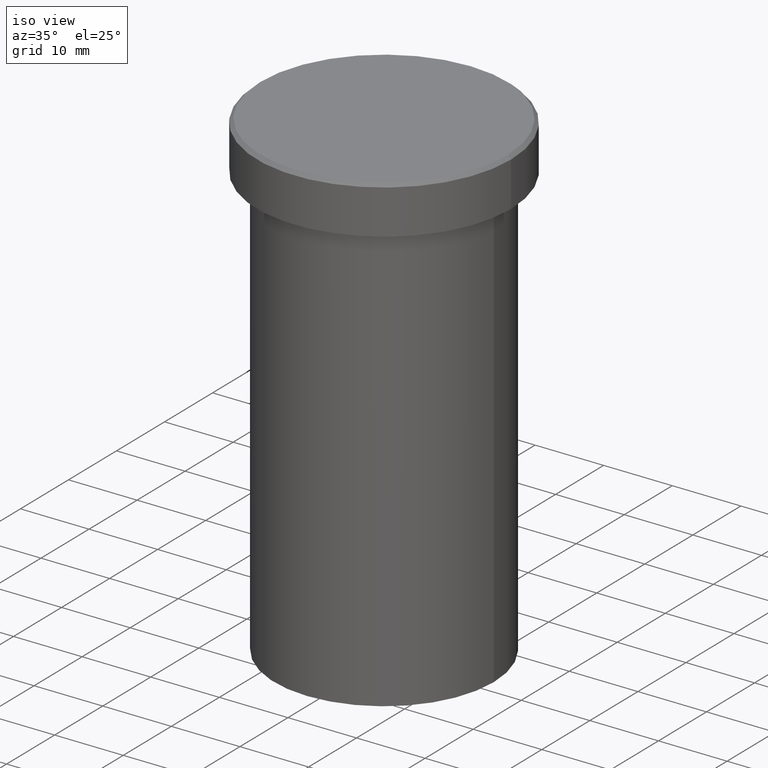
[diagram: clean part render]
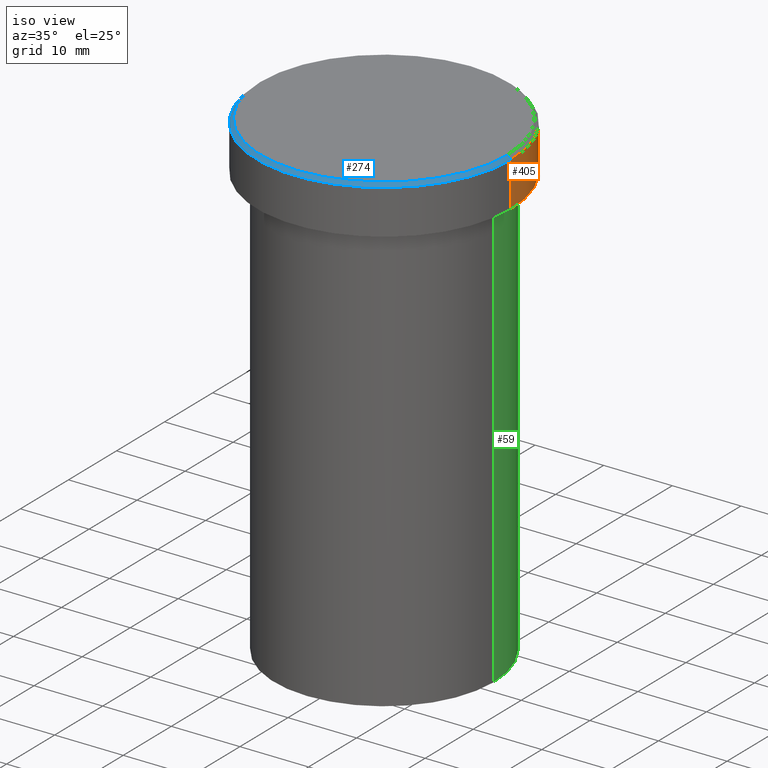
[diagram: same view with three faces highlighted in distinct colors, each labeled with its STEP entity id]
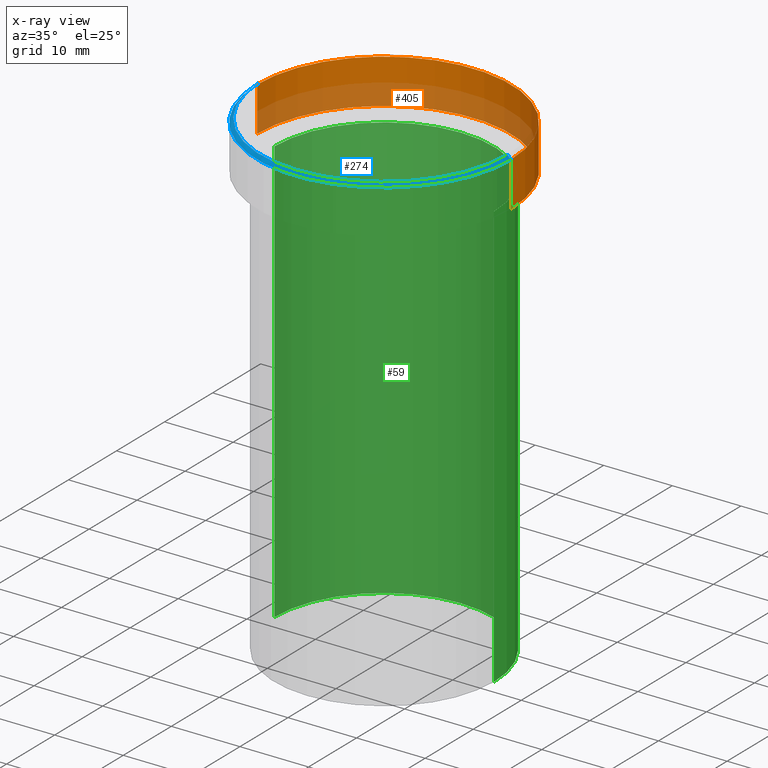
[diagram: x-ray of the same camera — body ghosted, the three highlighted faces saturated]
A machine part, iso view with three faces highlighted in distinct colors.
The next image is the same camera in x-ray (body ghosted, the three faces saturated) — at least one of them is partly hidden behind the body in this view.
Their STEP definitions:

[orange] entity #405 — the highlighted cylindrical surface (partial cylindrical patch) has radius 18.5 mm, axis along (-0, -0, 1).
#34 = CYLINDRICAL_SURFACE ( 'NONE', #152, 18.50000000000000000 ) ;
#46 = EDGE_CURVE ( 'NONE', #216, #121, #319, .T. ) ;
#62 = ORIENTED_EDGE ( 'NONE', *, *, #169, .T. ) ;
#63 = ORIENTED_EDGE ( 'NONE', *, *, #248, .T. ) ;
#67 = DIRECTION ( 'NONE',  ( -0.000000000000000000, -0.000000000000000000, 1.000000000000000000 ) ) ;
#83 = VECTOR ( 'NONE', #404, 1000.000000000000000 ) ;
#89 = DIRECTION ( 'NONE',  ( 1.000000000000000000, 0.000000000000000000, 0.000000000000000000 ) ) ;
#102 = VERTEX_POINT ( 'NONE', #358 ) ;
#121 = VERTEX_POINT ( 'NONE', #390 ) ;
#152 = AXIS2_PLACEMENT_3D ( 'NONE', #382, #67, #187 ) ;
#169 = EDGE_CURVE ( 'NONE', #348, #121, #296, .T. ) ;
#170 = CARTESIAN_POINT ( 'NONE',  ( 18.50000000000000000, 0.000000000000000000, -6.999999999999999112 ) ) ;
#177 = ORIENTED_EDGE ( 'NONE', *, *, #46, .F. ) ;
#181 = FACE_OUTER_BOUND ( 'NONE', #392, .T. ) ;
#186 = CARTESIAN_POINT ( 'NONE',  ( 18.50000000000000000, 0.000000000000000000, 0.000000000000000000 ) ) ;
#187 = DIRECTION ( 'NONE',  ( 1.000000000000000000, 0.000000000000000000, 0.000000000000000000 ) ) ;
#213 = DIRECTION ( 'NONE',  ( -0.000000000000000000, -0.000000000000000000, 1.000000000000000000 ) ) ;
#216 = VERTEX_POINT ( 'NONE', #170 ) ;
#235 = VECTOR ( 'NONE', #361, 1000.000000000000000 ) ;
#241 = CARTESIAN_POINT ( 'NONE',  ( -18.50000000000000000, 2.265596578422603396E-15, 0.000000000000000000 ) ) ;
#245 = ORIENTED_EDGE ( 'NONE', *, *, #366, .T. ) ;
#248 = EDGE_CURVE ( 'NONE', #102, #348, #277, .T. ) ;
#273 = DIRECTION ( 'NONE',  ( 0.000000000000000000, 0.000000000000000000, -1.000000000000000000 ) ) ;
#277 = LINE ( 'NONE', #241, #83 ) ;
#282 = CIRCLE ( 'NONE', #375, 18.50000000000000000 ) ;
#290 = CARTESIAN_POINT ( 'NONE',  ( 0.000000000000000000, 0.000000000000000000, -6.999999999999999112 ) ) ;
#296 = CIRCLE ( 'NONE', #359, 18.50000000000000000 ) ;
#318 = CARTESIAN_POINT ( 'NONE',  ( -18.50000000000000000, 2.265596578422603396E-15, -0.5000000000000073275 ) ) ;
#319 = LINE ( 'NONE', #186, #235 ) ;
#345 = DIRECTION ( 'NONE',  ( 1.000000000000000000, 0.000000000000000000, 0.000000000000000000 ) ) ;
#348 = VERTEX_POINT ( 'NONE', #318 ) ;
#358 = CARTESIAN_POINT ( 'NONE',  ( -18.50000000000000000, 2.265596578422603396E-15, -6.999999999999999112 ) ) ;
#359 = AXIS2_PLACEMENT_3D ( 'NONE', #398, #273, #89 ) ;
#361 = DIRECTION ( 'NONE',  ( -0.000000000000000000, -0.000000000000000000, 1.000000000000000000 ) ) ;
#366 = EDGE_CURVE ( 'NONE', #216, #102, #282, .T. ) ;
#375 = AXIS2_PLACEMENT_3D ( 'NONE', #290, #213, #345 ) ;
#382 = CARTESIAN_POINT ( 'NONE',  ( 0.000000000000000000, 0.000000000000000000, 0.000000000000000000 ) ) ;
#390 = CARTESIAN_POINT ( 'NONE',  ( 18.50000000000000000, 0.000000000000000000, -0.5000000000000073275 ) ) ;
#392 = EDGE_LOOP ( 'NONE', ( #245, #63, #62, #177 ) ) ;
#398 = CARTESIAN_POINT ( 'NONE',  ( 0.000000000000000000, 0.000000000000000000, -0.5000000000000073275 ) ) ;
#404 = DIRECTION ( 'NONE',  ( -0.000000000000000000, -0.000000000000000000, 1.000000000000000000 ) ) ;
#405 = ADVANCED_FACE ( 'NONE', ( #181 ), #34, .T. ) ;

[blue] entity #274 — the highlighted conical surface has half-angle 45 deg.
#17 = DIRECTION ( 'NONE',  ( -0.7071067811865352493, 0.000000000000000000, -0.7071067811865597852 ) ) ;
#21 = CARTESIAN_POINT ( 'NONE',  ( -18.00000000000001066, 0.000000000000000000, 0.000000000000000000 ) ) ;
#23 = VECTOR ( 'NONE', #115, 1000.000000000000000 ) ;
#26 = LINE ( 'NONE', #146, #23 ) ;
#32 = EDGE_LOOP ( 'NONE', ( #300, #385, #249, #287 ) ) ;
#98 = LINE ( 'NONE', #295, #347 ) ;
#111 = EDGE_CURVE ( 'NONE', #153, #348, #98, .T. ) ;
#115 = DIRECTION ( 'NONE',  ( 0.7071067811865352493, 8.659560562354782482E-17, -0.7071067811865597852 ) ) ;
#118 = FACE_OUTER_BOUND ( 'NONE', #32, .T. ) ;
#121 = VERTEX_POINT ( 'NONE', #390 ) ;
#139 = CARTESIAN_POINT ( 'NONE',  ( 18.00000000000001066, 2.234980408443920004E-15, 0.000000000000000000 ) ) ;
#146 = CARTESIAN_POINT ( 'NONE',  ( 18.00000000000001066, 2.204364238465237006E-15, 0.000000000000000000 ) ) ;
#150 = DIRECTION ( 'NONE',  ( 0.000000000000000000, 0.000000000000000000, -1.000000000000000000 ) ) ;
#153 = VERTEX_POINT ( 'NONE', #21 ) ;
#165 = CIRCLE ( 'NONE', #320, 18.50000000000000000 ) ;
#171 = AXIS2_PLACEMENT_3D ( 'NONE', #279, #408, #309 ) ;
#211 = EDGE_CURVE ( 'NONE', #121, #348, #165, .T. ) ;
#221 = EDGE_CURVE ( 'NONE', #285, #121, #26, .T. ) ;
#244 = CARTESIAN_POINT ( 'NONE',  ( 0.000000000000000000, 0.000000000000000000, 0.000000000000000000 ) ) ;
#249 = ORIENTED_EDGE ( 'NONE', *, *, #111, .T. ) ;
#267 = EDGE_CURVE ( 'NONE', #153, #285, #386, .T. ) ;
#274 = ADVANCED_FACE ( 'NONE', ( #118 ), #349, .T. ) ;
#279 = CARTESIAN_POINT ( 'NONE',  ( 0.000000000000000000, 0.000000000000000000, 0.000000000000000000 ) ) ;
#285 = VERTEX_POINT ( 'NONE', #139 ) ;
#287 = ORIENTED_EDGE ( 'NONE', *, *, #211, .F. ) ;
#295 = CARTESIAN_POINT ( 'NONE',  ( -18.00000000000001066, 0.000000000000000000, 0.000000000000000000 ) ) ;
#300 = ORIENTED_EDGE ( 'NONE', *, *, #221, .F. ) ;
#305 = DIRECTION ( 'NONE',  ( 0.000000000000000000, 0.000000000000000000, -1.000000000000000000 ) ) ;
#307 = CARTESIAN_POINT ( 'NONE',  ( 0.000000000000000000, 0.000000000000000000, -0.5000000000000073275 ) ) ;
#309 = DIRECTION ( 'NONE',  ( 1.000000000000000000, 0.000000000000000000, 0.000000000000000000 ) ) ;
#318 = CARTESIAN_POINT ( 'NONE',  ( -18.50000000000000000, 2.265596578422603396E-15, -0.5000000000000073275 ) ) ;
#320 = AXIS2_PLACEMENT_3D ( 'NONE', #307, #150, #373 ) ;
#347 = VECTOR ( 'NONE', #17, 1000.000000000000000 ) ;
#348 = VERTEX_POINT ( 'NONE', #318 ) ;
#349 = CONICAL_SURFACE ( 'NONE', #402, 18.00000000000001066, 0.7853981633974309595 ) ;
#373 = DIRECTION ( 'NONE',  ( 1.000000000000000000, 0.000000000000000000, 0.000000000000000000 ) ) ;
#379 = DIRECTION ( 'NONE',  ( -1.000000000000000000, 0.000000000000000000, 0.000000000000000000 ) ) ;
#385 = ORIENTED_EDGE ( 'NONE', *, *, #267, .F. ) ;
#386 = CIRCLE ( 'NONE', #171, 18.00000000000001066 ) ;
#390 = CARTESIAN_POINT ( 'NONE',  ( 18.50000000000000000, 0.000000000000000000, -0.5000000000000073275 ) ) ;
#402 = AXIS2_PLACEMENT_3D ( 'NONE', #244, #305, #379 ) ;
#408 = DIRECTION ( 'NONE',  ( -0.000000000000000000, -0.000000000000000000, 1.000000000000000000 ) ) ;

[green] entity #59 — the highlighted cylindrical surface (partial cylindrical patch) has radius 16 mm, axis along (-0, -0, 1).
#11 = VERTEX_POINT ( 'NONE', #324 ) ;
#13 = DIRECTION ( 'NONE',  ( 1.000000000000000000, 0.000000000000000000, 0.000000000000000000 ) ) ;
#15 = LINE ( 'NONE', #136, #254 ) ;
#38 = DIRECTION ( 'NONE',  ( -0.000000000000000000, -0.000000000000000000, 1.000000000000000000 ) ) ;
#51 = VECTOR ( 'NONE', #210, 1000.000000000000000 ) ;
#59 = ADVANCED_FACE ( 'NONE', ( #227 ), #160, .T. ) ;
#81 = LINE ( 'NONE', #374, #51 ) ;
#88 = VERTEX_POINT ( 'NONE', #266 ) ;
#93 = CIRCLE ( 'NONE', #328, 16.00000000000000000 ) ;
#106 = EDGE_LOOP ( 'NONE', ( #383, #184, #326, #315 ) ) ;
#116 = VERTEX_POINT ( 'NONE', #258 ) ;
#126 = CIRCLE ( 'NONE', #231, 16.00000000000000000 ) ;
#136 = CARTESIAN_POINT ( 'NONE',  ( -16.00000000000000000, 1.959434878635765131E-15, 0.000000000000000000 ) ) ;
#140 = EDGE_CURVE ( 'NONE', #11, #88, #15, .T. ) ;
#160 = CYLINDRICAL_SURFACE ( 'NONE', #164, 16.00000000000000000 ) ;
#164 = AXIS2_PLACEMENT_3D ( 'NONE', #196, #38, #329 ) ;
#168 = DIRECTION ( 'NONE',  ( -0.000000000000000000, -0.000000000000000000, 1.000000000000000000 ) ) ;
#184 = ORIENTED_EDGE ( 'NONE', *, *, #140, .T. ) ;
#196 = CARTESIAN_POINT ( 'NONE',  ( 0.000000000000000000, 0.000000000000000000, 0.000000000000000000 ) ) ;
#199 = EDGE_CURVE ( 'NONE', #229, #116, #81, .T. ) ;
#210 = DIRECTION ( 'NONE',  ( -0.000000000000000000, -0.000000000000000000, 1.000000000000000000 ) ) ;
#217 = DIRECTION ( 'NONE',  ( -0.000000000000000000, -0.000000000000000000, 1.000000000000000000 ) ) ;
#227 = FACE_OUTER_BOUND ( 'NONE', #106, .T. ) ;
#229 = VERTEX_POINT ( 'NONE', #336 ) ;
#231 = AXIS2_PLACEMENT_3D ( 'NONE', #237, #403, #343 ) ;
#234 = EDGE_CURVE ( 'NONE', #229, #11, #126, .T. ) ;
#237 = CARTESIAN_POINT ( 'NONE',  ( 0.000000000000000000, 0.000000000000000000, -70.00000000000000000 ) ) ;
#254 = VECTOR ( 'NONE', #168, 1000.000000000000000 ) ;
#258 = CARTESIAN_POINT ( 'NONE',  ( 16.00000000000000000, 0.000000000000000000, -8.000000000000000000 ) ) ;
#259 = CARTESIAN_POINT ( 'NONE',  ( 0.000000000000000000, 0.000000000000000000, -8.000000000000000000 ) ) ;
#266 = CARTESIAN_POINT ( 'NONE',  ( -16.00000000000000000, 1.959434878635765131E-15, -8.000000000000000000 ) ) ;
#315 = ORIENTED_EDGE ( 'NONE', *, *, #199, .F. ) ;
#324 = CARTESIAN_POINT ( 'NONE',  ( -16.00000000000000000, 1.959434878635765131E-15, -70.00000000000000000 ) ) ;
#326 = ORIENTED_EDGE ( 'NONE', *, *, #380, .F. ) ;
#328 = AXIS2_PLACEMENT_3D ( 'NONE', #259, #217, #13 ) ;
#329 = DIRECTION ( 'NONE',  ( 1.000000000000000000, 0.000000000000000000, 0.000000000000000000 ) ) ;
#336 = CARTESIAN_POINT ( 'NONE',  ( 16.00000000000000000, 0.000000000000000000, -70.00000000000000000 ) ) ;
#343 = DIRECTION ( 'NONE',  ( 1.000000000000000000, 0.000000000000000000, 0.000000000000000000 ) ) ;
#374 = CARTESIAN_POINT ( 'NONE',  ( 16.00000000000000000, 0.000000000000000000, 0.000000000000000000 ) ) ;
#380 = EDGE_CURVE ( 'NONE', #116, #88, #93, .T. ) ;
#383 = ORIENTED_EDGE ( 'NONE', *, *, #234, .T. ) ;
#403 = DIRECTION ( 'NONE',  ( -0.000000000000000000, -0.000000000000000000, 1.000000000000000000 ) ) ;